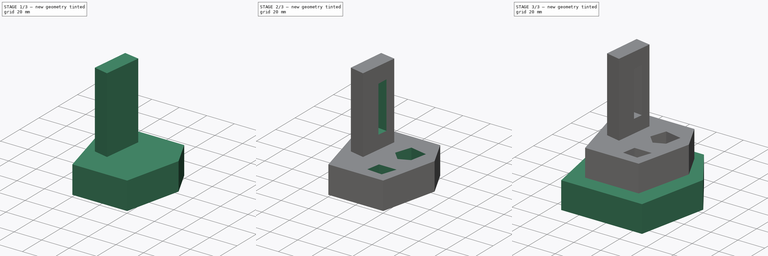
[diagram: build sequence overview — one tinted view per stage of 3, left to right]
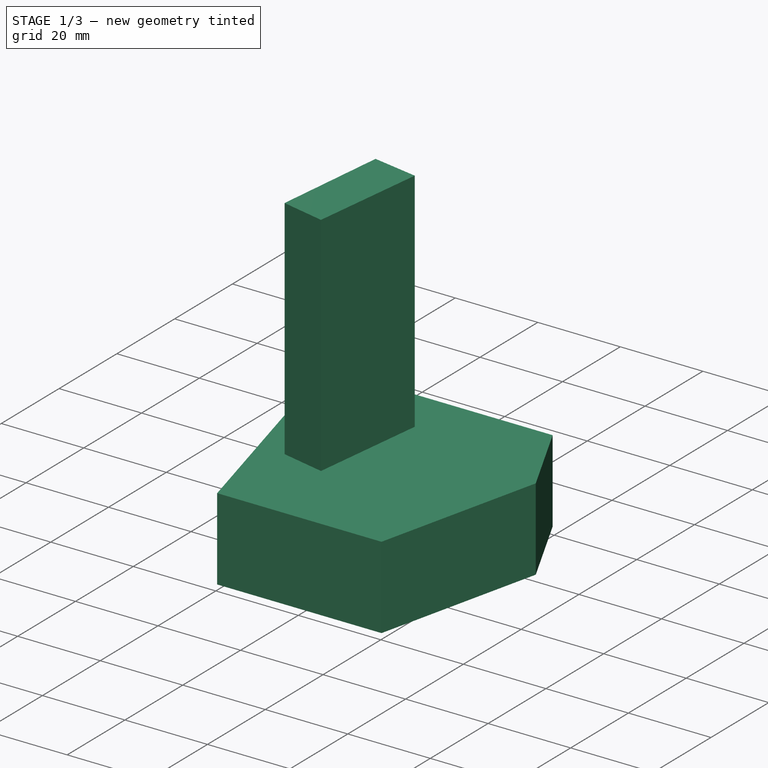
[diagram: stage 1 of 3 — iso view after this stage's code; geometry added in this stage tinted green]
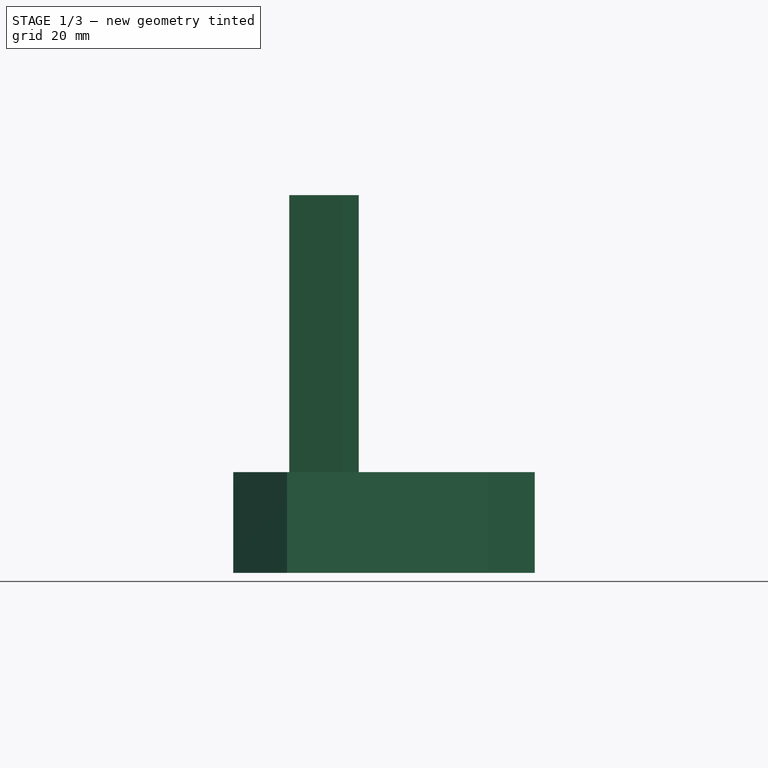
[diagram: stage 1 of 3 — front view after this stage's code; geometry added in this stage tinted green]
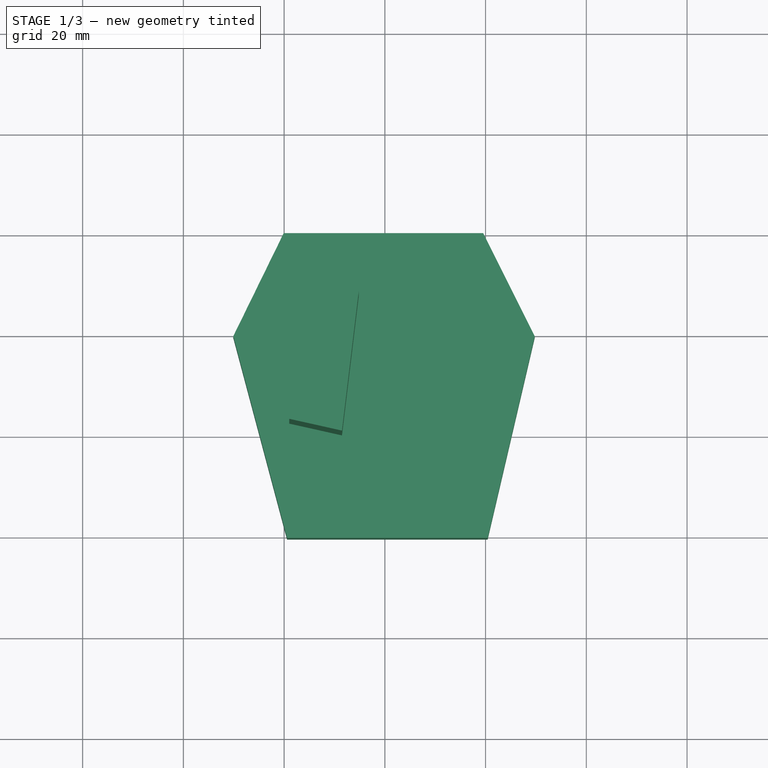
[diagram: stage 1 of 3 — top view after this stage's code; geometry added in this stage tinted green]
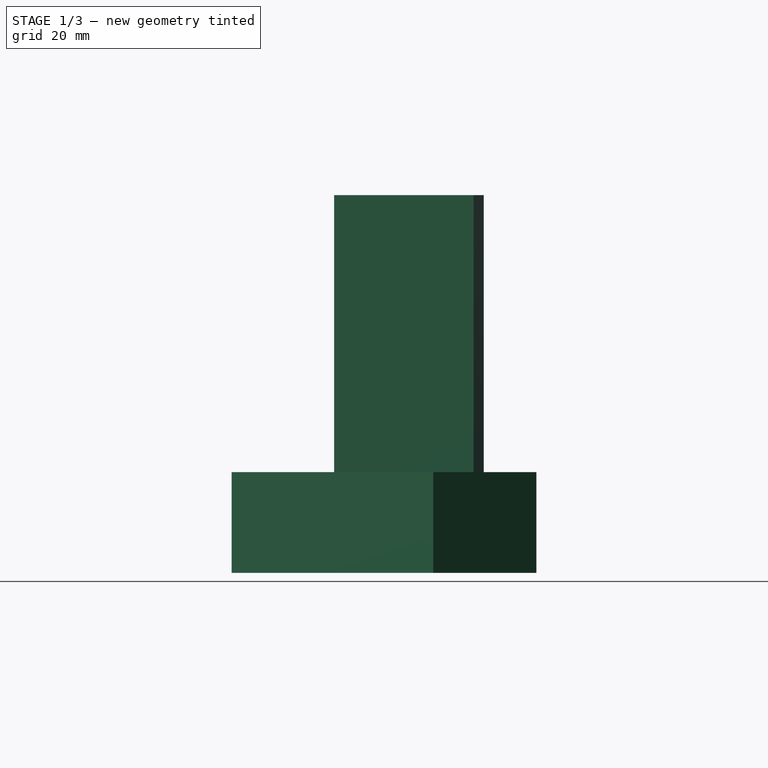
[diagram: stage 1 of 3 — right view after this stage's code; geometry added in this stage tinted green]
FCSTD DOCUMENT  (FreeCAD 1.0R39319 (Git))
Label: ojt1_t17p01_extrusion_holes
License: All rights reserved
LicenseURL: https://en.wikipedia.org/wiki/All_rights_reserved
objects: Sketcher::SketchObject×6, PartDesign::Pad×3, PartDesign::Pocket×3, PartDesign::Body×2, Part::MultiFuse×1
note: 33 computed .brp shape members not serialized (recipe doc carries the construction recipe); baked Part::Feature solids carry a one-line shape summary decoded from their .brp

FEATURE [PartDesign::Body] Body  label="Cos"
  AllowCompound = false
  Group = -> [Sketch,Pad]
  Origin = -> Origin
  Placement = pos=(0,0,-21) rot=(0,0,1;0rad)
  Tip = -> Pad
FEATURE [Sketcher::SketchObject] Sketch001
  ArcFitTolerance = 1e-06
  AttachmentSupport = -> [XY_Plane001]
  FullyConstrained = false
  MakeInternals = false
  MapMode = 5
  sketch-geometry (6):
    g0: LineSegment StartX=-20.0781 StartY=40.1578 StartZ=0 EndX=19.5222 EndY=40.1578 EndZ=0
    g1: LineSegment StartX=19.5222 StartY=40.1578 StartZ=0 EndX=29.756 EndY=19.6902 EndZ=0
    g2: LineSegment StartX=29.756 StartY=19.6902 StartZ=0 EndX=20.4121 EndY=-20.355 EndZ=0
    g3: LineSegment StartX=20.4121 StartY=-20.355 StartZ=0 EndX=-19.4107 EndY=-20.355 EndZ=0
    g4: LineSegment StartX=-19.4107 StartY=-20.355 StartZ=0 EndX=-30.0894 EndY=19.6902 EndZ=0
    g5: LineSegment StartX=-30.0894 StartY=19.6902 StartZ=0 EndX=-20.0781 EndY=40.1578 EndZ=0
  constraints (8):
    c: Horizontal(g0)
    c: Coincident(g0,g1)
    c: Coincident(g1,g2)
    c: Coincident(g2,g3)
    c: Horizontal(g3)
    c: Coincident(g3,g4)
    c: Coincident(g4,g5)
    c: Coincident(g5,g0)
FEATURE [PartDesign::Pad] Pad001
  Direction = (0,0,1)
  Length = 20
  Length2 = 10
  Profile = -> Sketch001
  ReferenceAxis = -> Sketch001 [N_Axis]
  Refine = true
  Suppressed = false
  Type = 0
FEATURE [Sketcher::SketchObject] Sketch002
  ArcFitTolerance = 1e-06
  AttachmentSupport = -> [Pad001]
  FullyConstrained = false
  MakeInternals = false
  MapMode = 5
  Placement = pos=(0,0,20) rot=(0,0,1;0rad)
  sketch-geometry (4):
    g0: LineSegment StartX=-16.0736 StartY=29.7016 StartZ=0 EndX=-18.9657 EndY=2.33732 EndZ=0
    g1: LineSegment StartX=-18.9657 StartY=2.33732 StartZ=0 EndX=-8.50948 EndY=0 EndZ=0
    g2: LineSegment StartX=-8.50948 StartY=0 StartZ=0 EndX=-5.17238 EndY=27.6993 EndZ=0
    g3: LineSegment StartX=-5.17238 StartY=27.6993 StartZ=0 EndX=-16.0736 EndY=29.7016 EndZ=0
  constraints (5):
    c: Coincident(g0,g1)
    c: PointOnObject(g1,g-1)
    c: Coincident(g1,g2)
    c: Coincident(g2,g3)
    c: Coincident(g3,g0)
FEATURE [PartDesign::Pad] Pad002
  BaseFeature = -> Pad001
  Direction = (0,0,1)
  Length = 55
  Length2 = 10
  Profile = -> Sketch002
  ReferenceAxis = -> Sketch002 [N_Axis]
  Refine = true
  Suppressed = false
  Type = 0
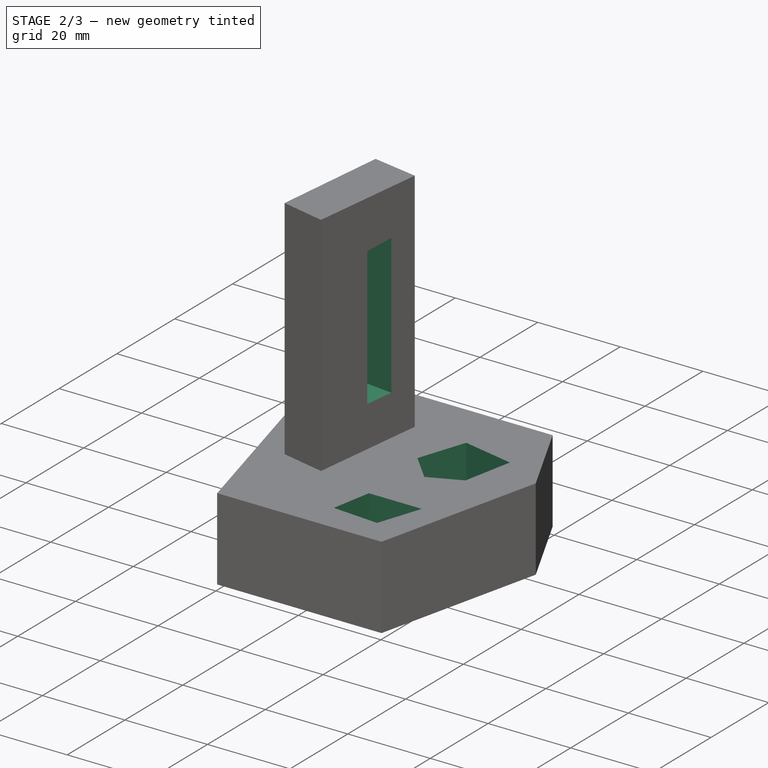
[diagram: stage 2 of 3 — iso view after this stage's code; geometry added in this stage tinted green]
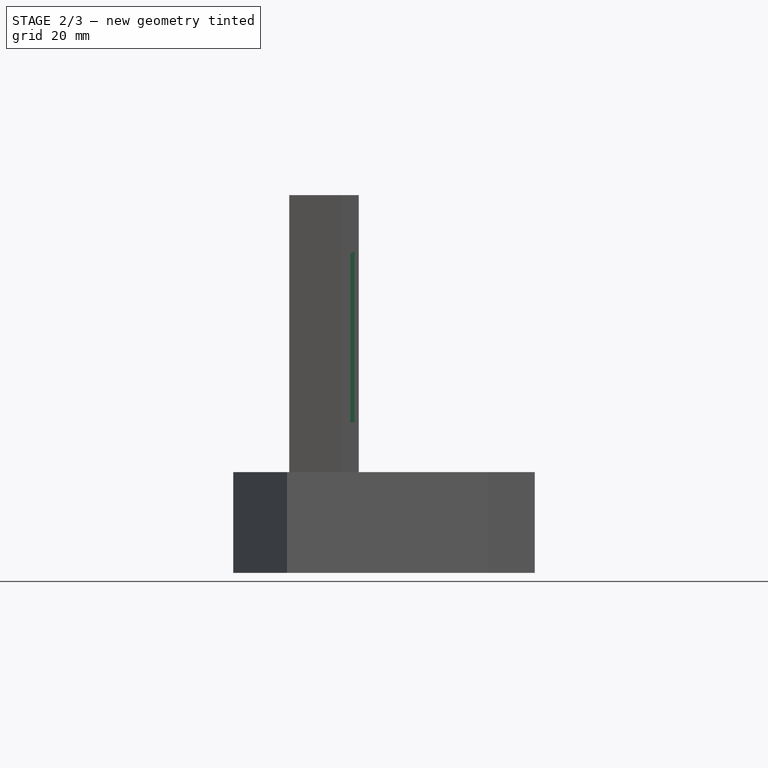
[diagram: stage 2 of 3 — front view after this stage's code; geometry added in this stage tinted green]
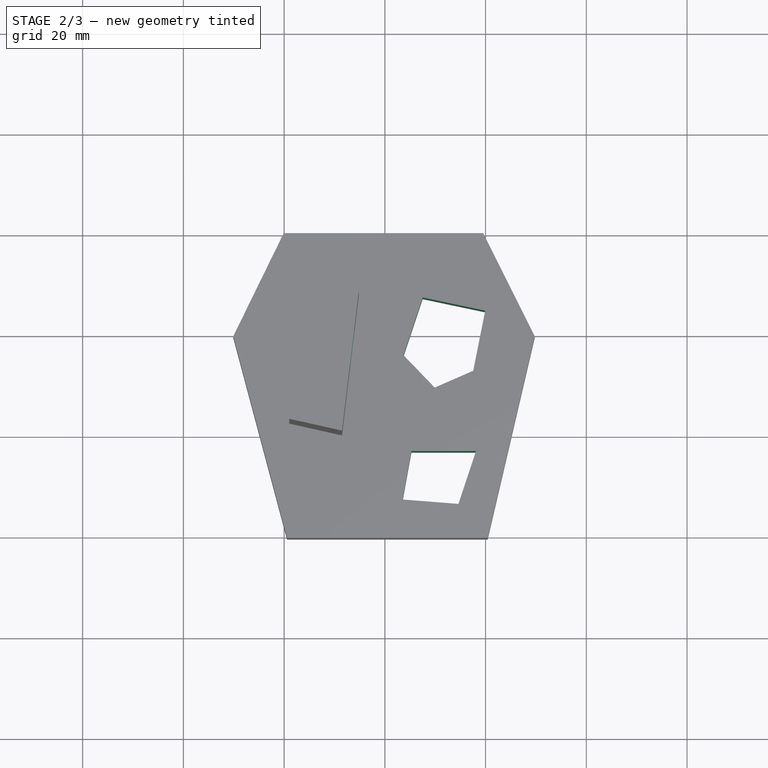
[diagram: stage 2 of 3 — top view after this stage's code; geometry added in this stage tinted green]
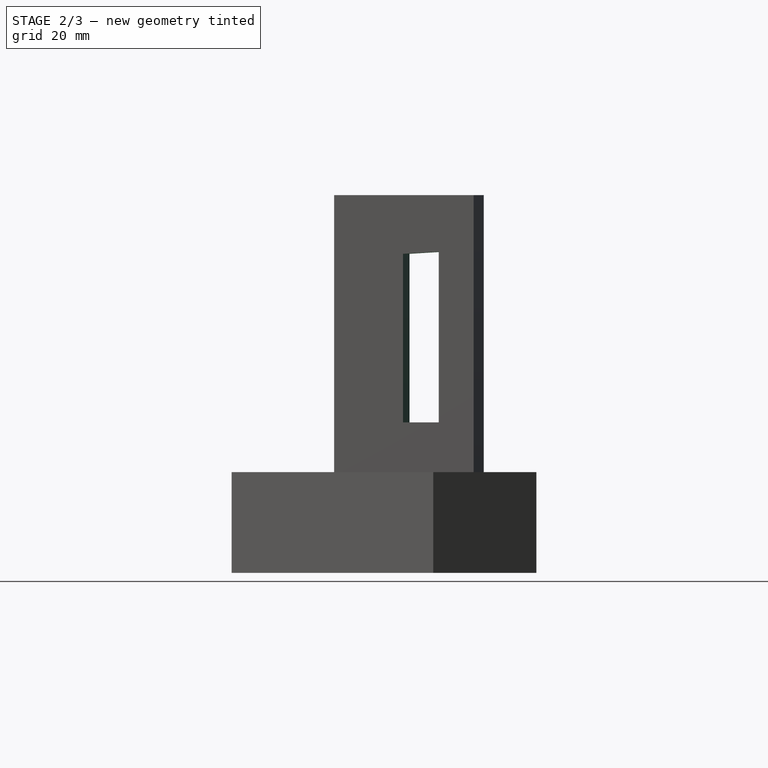
[diagram: stage 2 of 3 — right view after this stage's code; geometry added in this stage tinted green]
FEATURE [Sketcher::SketchObject] Sketch003
  ArcFitTolerance = 1e-06
  AttachmentSupport = -> [Pad002]
  FullyConstrained = false
  MakeInternals = false
  MapMode = 5
  Placement = pos=(0,0,20) rot=(0,0,1;0rad)
  sketch-geometry (4):
    g0: LineSegment StartX=3.52328 StartY=-12.7231 StartZ=0 EndX=5.27181 EndY=-3.1062 EndZ=0
    g1: LineSegment StartX=5.27181 StartY=-3.1062 StartZ=0 EndX=18.0944 EndY=-3.1062 EndZ=0
    g2: LineSegment StartX=18.0944 StartY=-3.1062 StartZ=0 EndX=14.5973 EndY=-13.5974 EndZ=0
    g3: LineSegment StartX=14.5973 StartY=-13.5974 StartZ=0 EndX=3.52328 EndY=-12.7231 EndZ=0
  constraints (5):
    c: Coincident(g0,g1)
    c: Horizontal(g1)
    c: Coincident(g1,g2)
    c: Coincident(g2,g3)
    c: Coincident(g3,g0)
FEATURE [PartDesign::Pocket] Pocket
  BaseFeature = -> Pad002
  Direction = (0,0,-1)
  Length = 5
  Length2 = 5
  Profile = -> Sketch003
  ReferenceAxis = -> Sketch003 [N_Axis]
  Refine = true
  Suppressed = false
  Type = 1
FEATURE [Sketcher::SketchObject] Sketch004
  ArcFitTolerance = 1e-06
  AttachmentSupport = -> [Pocket]
  FullyConstrained = false
  MakeInternals = false
  MapMode = 5
  Placement = pos=(0,0,20) rot=(0,0,1;0rad)
  sketch-geometry (5):
    g0: LineSegment StartX=7.51579 StartY=27.3924 StartZ=0 EndX=19.9228 EndY=24.7678 EndZ=0
    g1: LineSegment StartX=19.9228 StartY=24.7678 StartZ=0 EndX=17.5368 EndY=12.838 EndZ=0
    g2: LineSegment StartX=17.5368 StartY=12.838 StartZ=0 EndX=9.90176 EndY=9.49765 EndZ=0
    g3: LineSegment StartX=9.90176 StartY=9.49765 StartZ=0 EndX=3.69825 EndY=15.9398 EndZ=0
    g4: LineSegment StartX=3.69825 StartY=15.9398 StartZ=0 EndX=7.51579 EndY=27.3924 EndZ=0
  constraints (5):
    c: Coincident(g0,g1)
    c: Coincident(g1,g2)
    c: Coincident(g2,g3)
    c: Coincident(g3,g4)
    c: Coincident(g4,g0)
FEATURE [PartDesign::Pocket] Pocket001
  BaseFeature = -> Pocket
  Direction = (0,0,-1)
  Length = 6
  Length2 = 5
  Profile = -> Sketch004
  ReferenceAxis = -> Sketch004 [N_Axis]
  Refine = true
  Suppressed = false
  Type = 1
FEATURE [Sketcher::SketchObject] Sketch005
  ArcFitTolerance = 1e-06
  AttachmentSupport = -> [Pocket001]
  FullyConstrained = false
  MakeInternals = false
  MapMode = 5
  Placement = pos=(-8.38774,1.01052,0) rot=(0.623459,0.552856,0.552856;2.02661rad)
  sketch-geometry (4):
    g0: LineSegment StartX=12.7574 StartY=63.3474 StartZ=0 EndX=19.9093 EndY=63.7765 EndZ=0
    g1: LineSegment StartX=19.9093 StartY=63.7765 StartZ=0 EndX=19.9093 EndY=29.8766 EndZ=0
    g2: LineSegment StartX=19.9093 StartY=29.8766 StartZ=0 EndX=12.7574 EndY=29.8766 EndZ=0
    g3: LineSegment StartX=12.7574 StartY=29.8766 StartZ=0 EndX=12.7574 EndY=63.3474 EndZ=0
  constraints (7):
    c: Coincident(g0,g1)
    c: Vertical(g1)
    c: Coincident(g1,g2)
    c: Horizontal(g2)
    c: Coincident(g2,g3)
    c: Coincident(g3,g0)
    c: Vertical(g3)
FEATURE [PartDesign::Pocket] Pocket002
  BaseFeature = -> Pocket001
  Direction = (-0.992821,0.119611,2e-16)
  Length = 5
  Length2 = 5
  Profile = -> Sketch005
  ReferenceAxis = -> Sketch005 [N_Axis]
  Refine = true
  Suppressed = false
  Type = 1
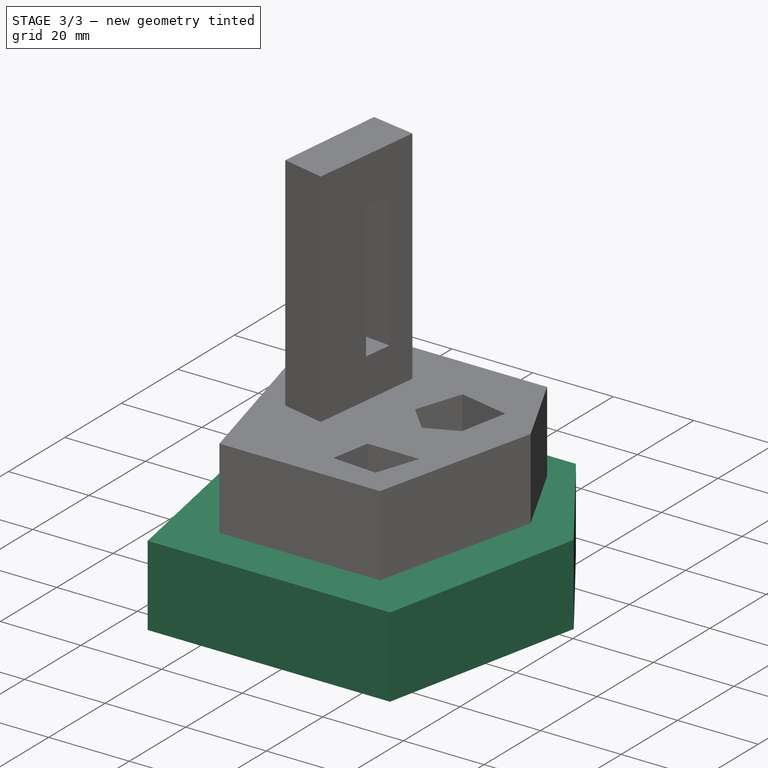
[diagram: stage 3 of 3 — iso view after this stage's code; geometry added in this stage tinted green]
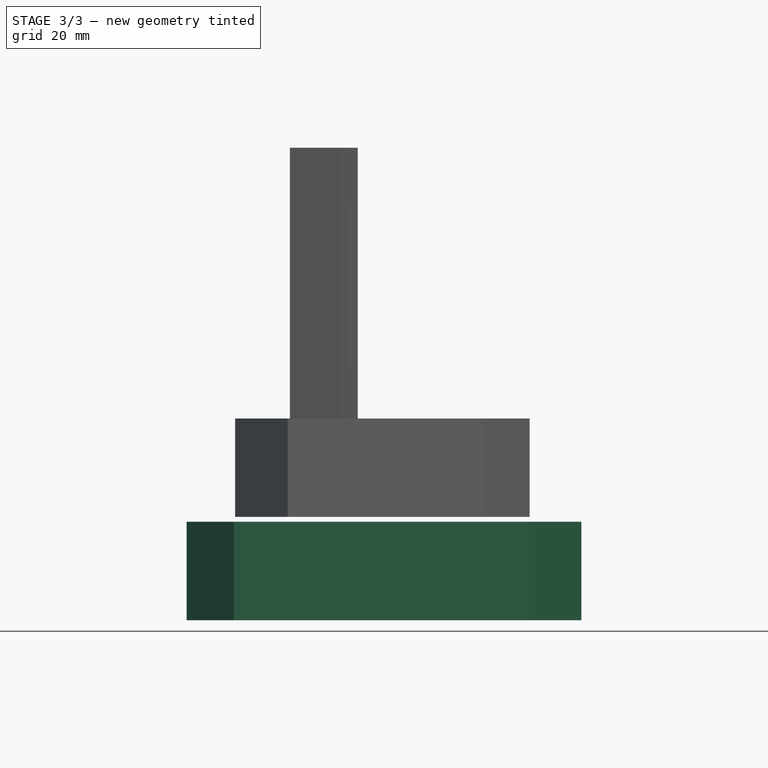
[diagram: stage 3 of 3 — front view after this stage's code; geometry added in this stage tinted green]
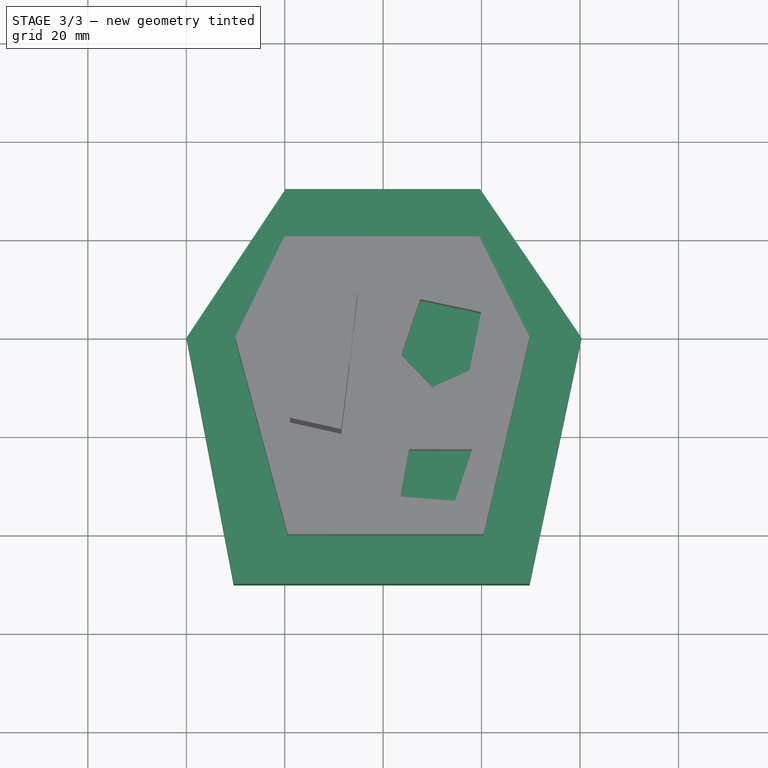
[diagram: stage 3 of 3 — top view after this stage's code; geometry added in this stage tinted green]
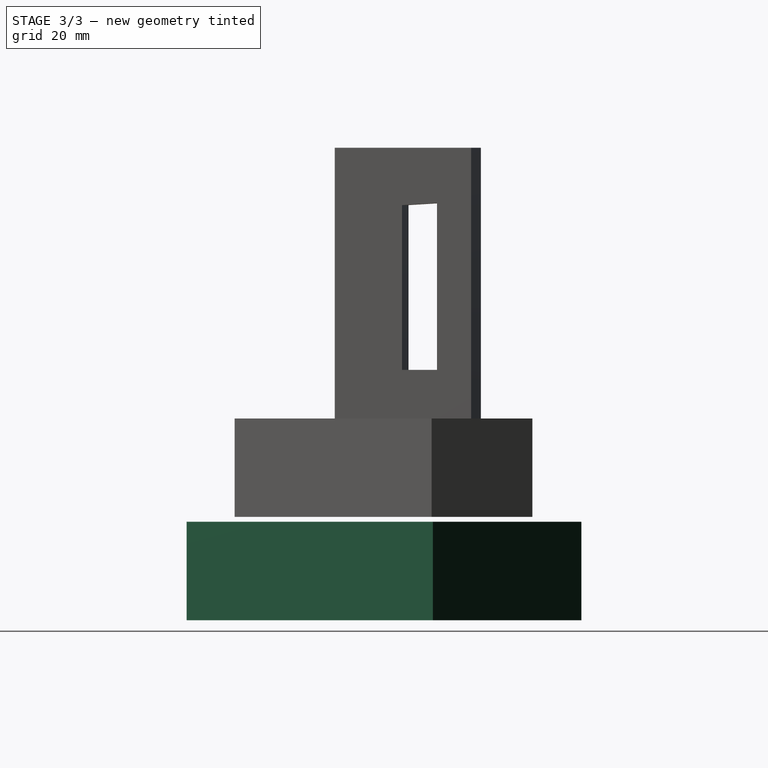
[diagram: stage 3 of 3 — right view after this stage's code; geometry added in this stage tinted green]
FEATURE [Sketcher::SketchObject] Sketch
  ArcFitTolerance = 1e-06
  AttachmentSupport = -> [XY_Plane]
  FullyConstrained = false
  MakeInternals = false
  MapMode = 5
  sketch-geometry (6):
    g0: LineSegment StartX=-19.8255 StartY=50.1224 StartZ=0 EndX=-39.9427 EndY=19.9466 EndZ=0
    g1: LineSegment StartX=-39.9427 StartY=19.9466 StartZ=0 EndX=-30.3631 EndY=-30.107 EndZ=0
    g2: LineSegment StartX=-30.3631 StartY=-30.107 StartZ=0 EndX=29.7491 EndY=-30.107 EndZ=0
    g3: LineSegment StartX=29.7491 StartY=-30.107 StartZ=0 EndX=40.2867 EndY=19.9466 EndZ=0
    g4: LineSegment StartX=40.2867 StartY=19.9466 StartZ=0 EndX=19.6905 EndY=50.1224 EndZ=0
    g5: LineSegment StartX=19.6905 StartY=50.1224 StartZ=0 EndX=-19.8255 EndY=50.1224 EndZ=0
  constraints (8):
    c: Coincident(g0,g1)
    c: Coincident(g1,g2)
    c: Horizontal(g2)
    c: Coincident(g2,g3)
    c: Coincident(g3,g4)
    c: Coincident(g4,g5)
    c: Coincident(g5,g0)
    c: Horizontal(g5)
FEATURE [PartDesign::Pad] Pad
  Direction = (0,0,1)
  Length = 20
  Length2 = 10
  Profile = -> Sketch
  ReferenceAxis = -> Sketch [N_Axis]
  Refine = true
  Suppressed = false
  Type = 0
FEATURE [PartDesign::Body] Body001  label="Cos001"
  AllowCompound = false
  Group = -> [Sketch001,Pad001,Sketch002,Pad002,Sketch003,Pocket,Sketch004,Pocket001,Sketch005,Pocket002]
  Origin = -> Origin001
  Tip = -> Pocket002
FEATURE [Part::MultiFuse] Fusion
  Refine = true
  Shapes = -> [Body,Body001]
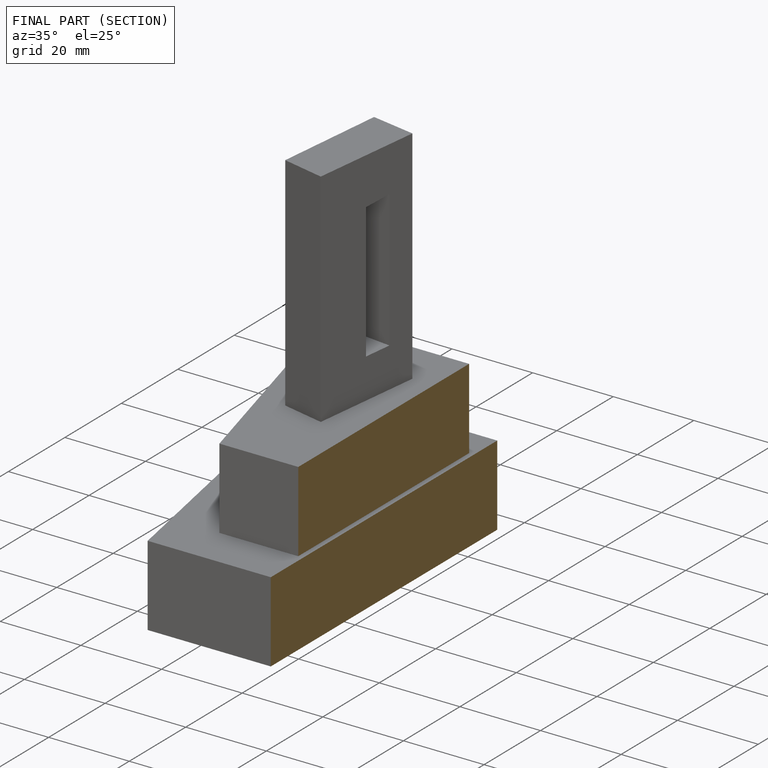
[diagram: finished part — half-section view (interior)]
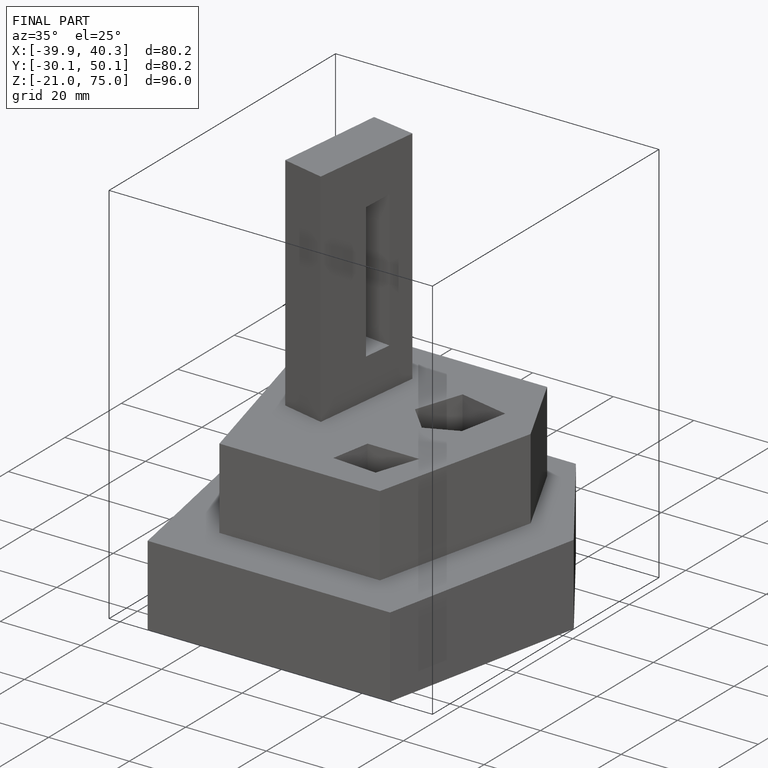
[diagram: finished part — iso view with bounding-box wireframe]
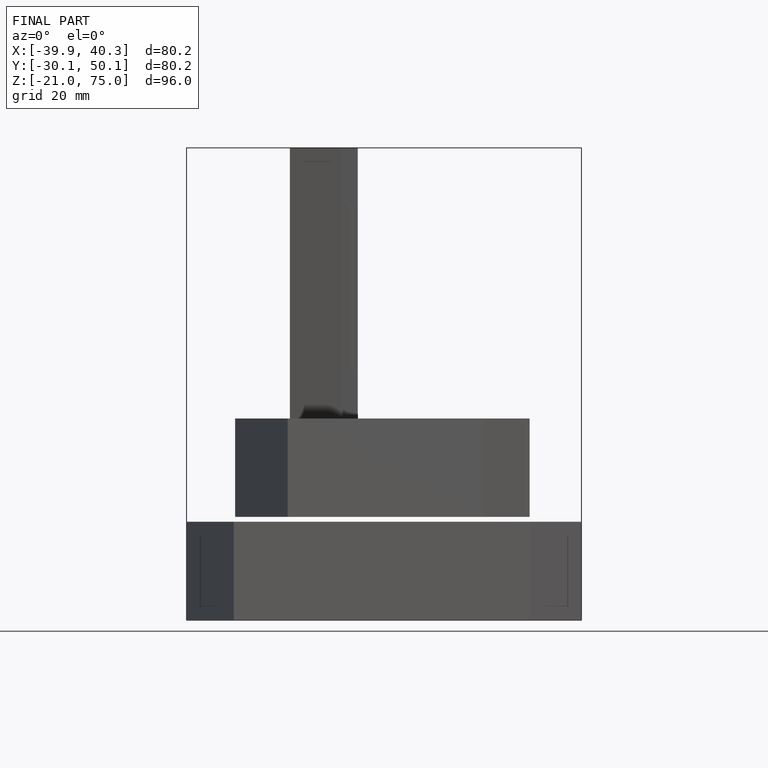
[diagram: finished part — front view with bounding-box wireframe]
